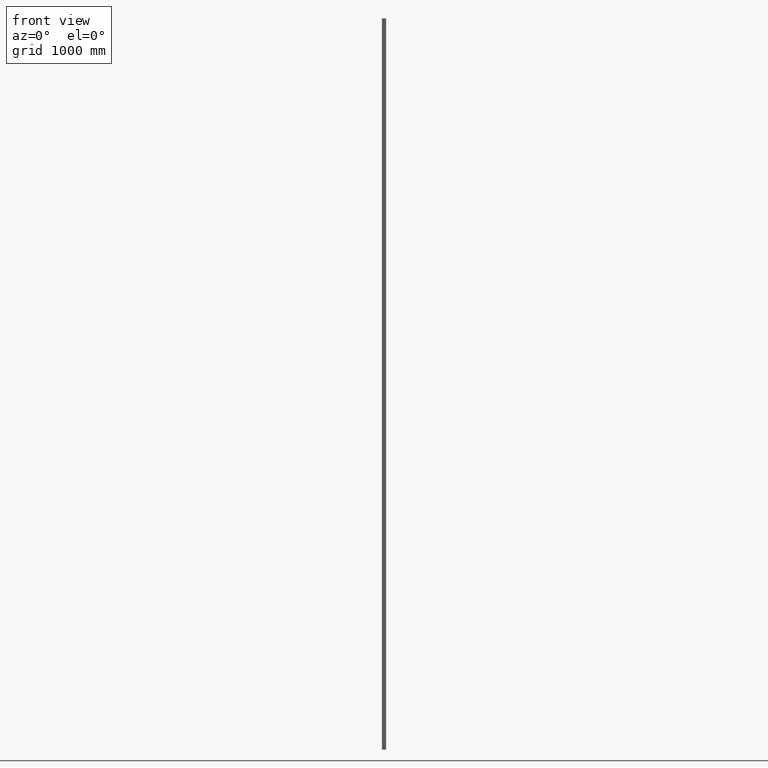
[diagram: clean part render]
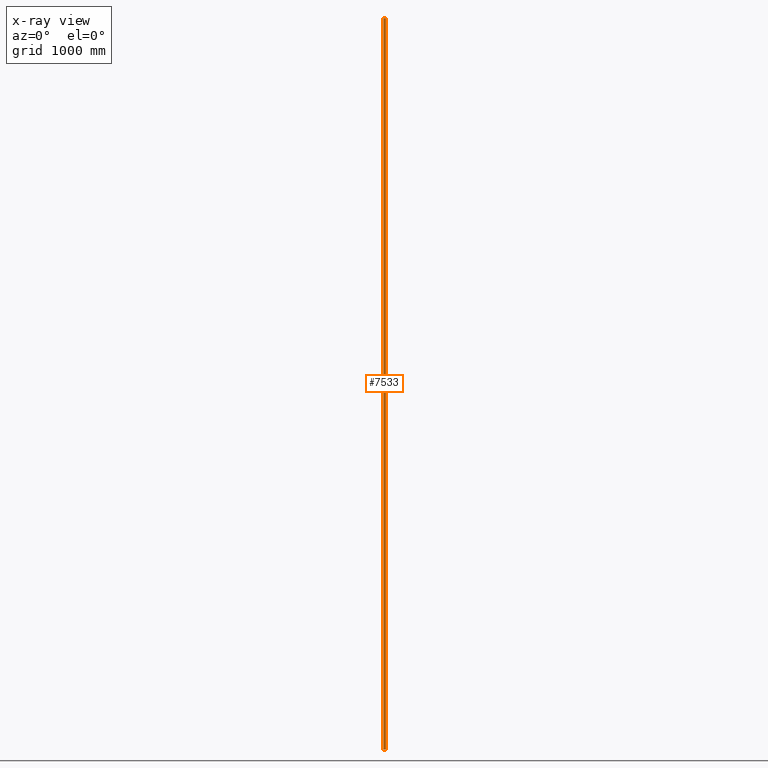
[diagram: x-ray — body ghosted, one internal face saturated and labeled with its STEP entity id]
A machine part, front view, then the same camera in x-ray: the body is ghosted and one INTERNAL B-rep face — a face not visible from any outside direction — is saturated and labeled: STEP entity #7533.
In plain terms, the highlighted planar face has unit normal (0, -1, 0).
Its self-contained STEP definition (entity closure, byte-faithful):
#256 = ORIENTED_EDGE ( 'NONE', *, *, #6068, .F. ) ;
#276 = DIRECTION ( 'NONE',  ( -0.0000000000000000000, -0.0000000000000000000, -1.000000000000000000 ) ) ;
#404 = AXIS2_PLACEMENT_3D ( 'NONE', #688, #644, #11884 ) ;
#644 = DIRECTION ( 'NONE',  ( 8.260587980955042900E-017, -1.000000000000000000, 0.0000000000000000000 ) ) ;
#688 = CARTESIAN_POINT ( 'NONE',  ( -1.652117596190825900E-016, 1.999999999999778800, 3000.000000000000000 ) ) ;
#958 = DIRECTION ( 'NONE',  ( -0.0000000000000000000, -0.0000000000000000000, -1.000000000000000000 ) ) ;
#1562 = EDGE_CURVE ( 'NONE', #4950, #6429, #11246, .T. ) ;
#2352 = CARTESIAN_POINT ( 'NONE',  ( -8.374999999711988600, 1.999999999999778000, 3000.000000000000000 ) ) ;
#3654 = VECTOR ( 'NONE', #12085, 1000.000000000000000 ) ;
#4087 = EDGE_CURVE ( 'NONE', #4509, #4117, #11215, .T. ) ;
#4117 = VERTEX_POINT ( 'NONE', #10758 ) ;
#4509 = VERTEX_POINT ( 'NONE', #7462 ) ;
#4745 = PLANE ( 'NONE',  #404 ) ;
#4950 = VERTEX_POINT ( 'NONE', #6709 ) ;
#5878 = CARTESIAN_POINT ( 'NONE',  ( -1.652117596190825900E-016, 1.999999999999778800, -3000.000000000000000 ) ) ;
#6068 = EDGE_CURVE ( 'NONE', #6429, #4117, #8640, .T. ) ;
#6086 = ORIENTED_EDGE ( 'NONE', *, *, #4087, .T. ) ;
#6095 = CARTESIAN_POINT ( 'NONE',  ( -1.652117596190825900E-016, 1.999999999999778800, 3000.000000000000000 ) ) ;
#6415 = VECTOR ( 'NONE', #958, 1000.000000000000000 ) ;
#6429 = VERTEX_POINT ( 'NONE', #2352 ) ;
#6709 = CARTESIAN_POINT ( 'NONE',  ( 12.62500000000048000, 1.999999999999779700, 3000.000000000000000 ) ) ;
#7462 = CARTESIAN_POINT ( 'NONE',  ( 12.62500000000048000, 1.999999999999779700, -3000.000000000000000 ) ) ;
#7533 = ADVANCED_FACE ( 'NONE', ( #9903 ), #4745, .F. ) ;
#7575 = CARTESIAN_POINT ( 'NONE',  ( -8.374999999711988600, 1.999999999999778000, 3000.000000000000000 ) ) ;
#7787 = DIRECTION ( 'NONE',  ( -1.000000000000000000, -8.260587980955042900E-017, 0.0000000000000000000 ) ) ;
#8168 = VECTOR ( 'NONE', #276, 1000.000000000000000 ) ;
#8640 = LINE ( 'NONE', #7575, #8168 ) ;
#9285 = VECTOR ( 'NONE', #7787, 1000.000000000000000 ) ;
#9486 = EDGE_CURVE ( 'NONE', #4950, #4509, #9702, .T. ) ;
#9702 = LINE ( 'NONE', #12066, #6415 ) ;
#9903 = FACE_OUTER_BOUND ( 'NONE', #11877, .T. ) ;
#10758 = CARTESIAN_POINT ( 'NONE',  ( -8.374999999711988600, 1.999999999999778000, -3000.000000000000000 ) ) ;
#10913 = ORIENTED_EDGE ( 'NONE', *, *, #1562, .F. ) ;
#11215 = LINE ( 'NONE', #5878, #9285 ) ;
#11246 = LINE ( 'NONE', #6095, #3654 ) ;
#11877 = EDGE_LOOP ( 'NONE', ( #6086, #256, #10913, #11887 ) ) ;
#11884 = DIRECTION ( 'NONE',  ( 1.000000000000000000, 8.260587980955042900E-017, 0.0000000000000000000 ) ) ;
#11887 = ORIENTED_EDGE ( 'NONE', *, *, #9486, .T. ) ;
#12066 = CARTESIAN_POINT ( 'NONE',  ( 12.62500000000048000, 1.999999999999779700, 3000.000000000000000 ) ) ;
#12085 = DIRECTION ( 'NONE',  ( -1.000000000000000000, -8.260587980955042900E-017, 0.0000000000000000000 ) ) ;